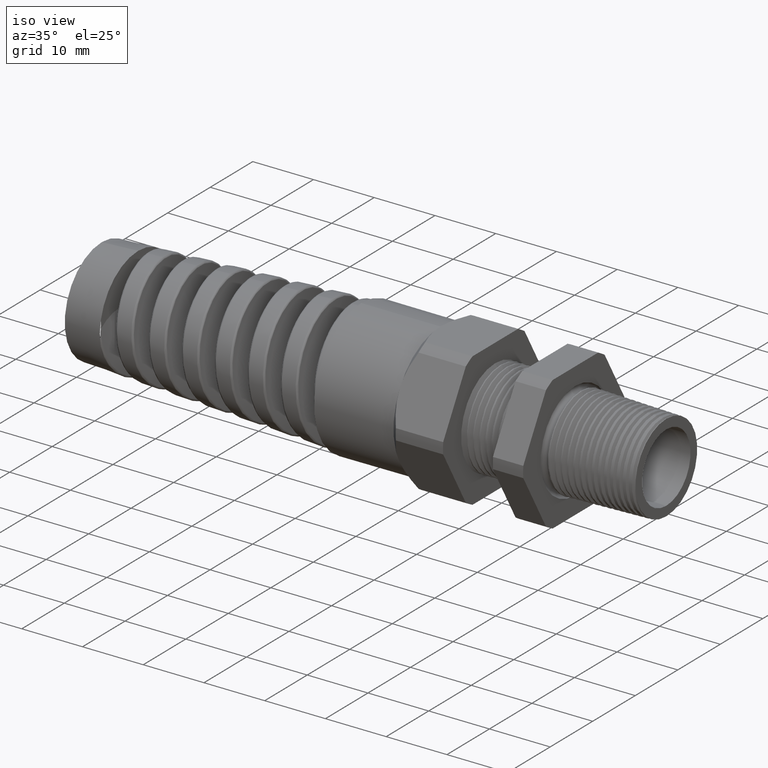
[diagram: clean part render]
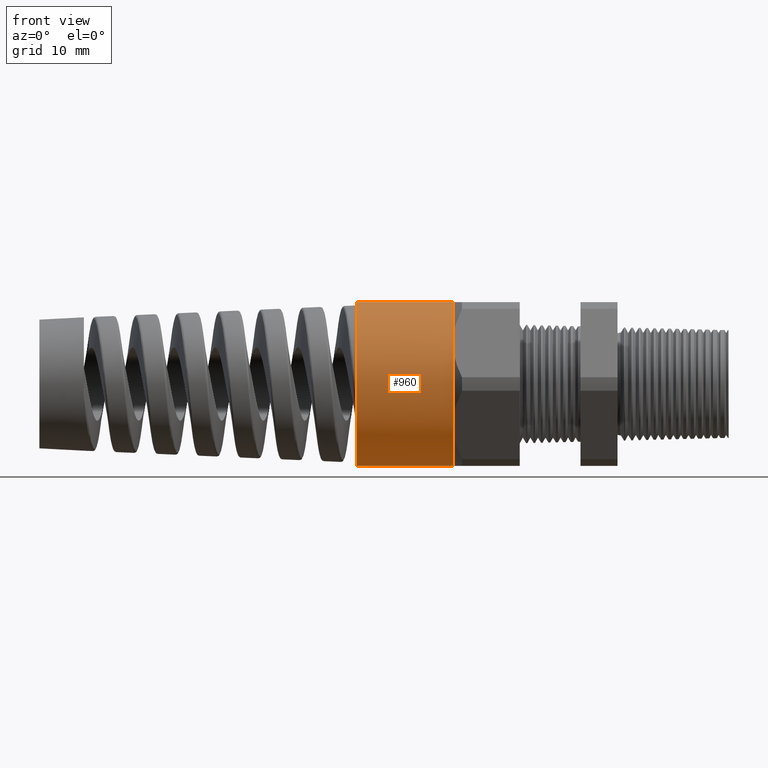
[diagram: tour spotlight — one face highlighted and labeled with its STEP entity id]
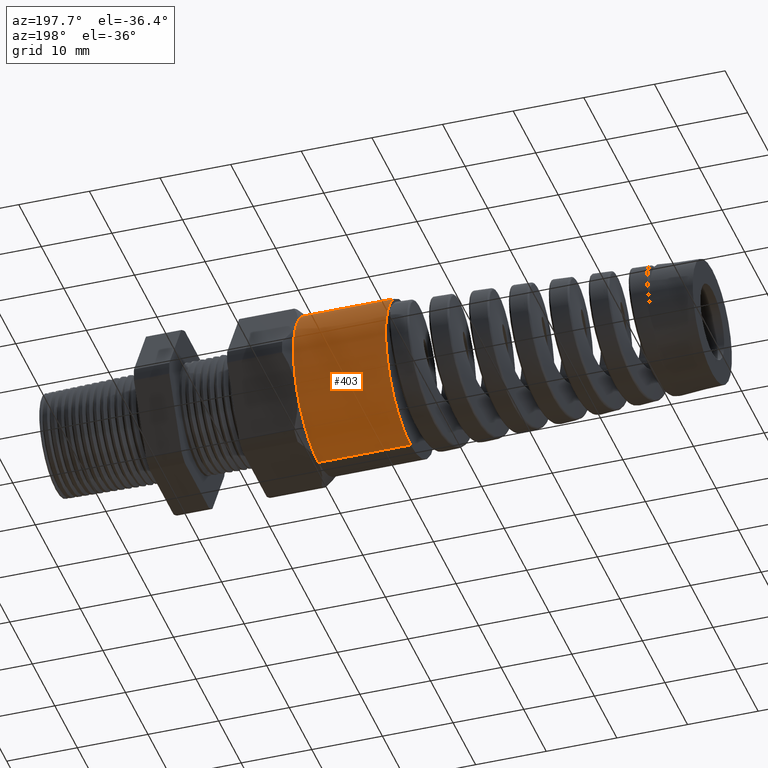
[diagram: tour spotlight — one face highlighted and labeled with its STEP entity id]
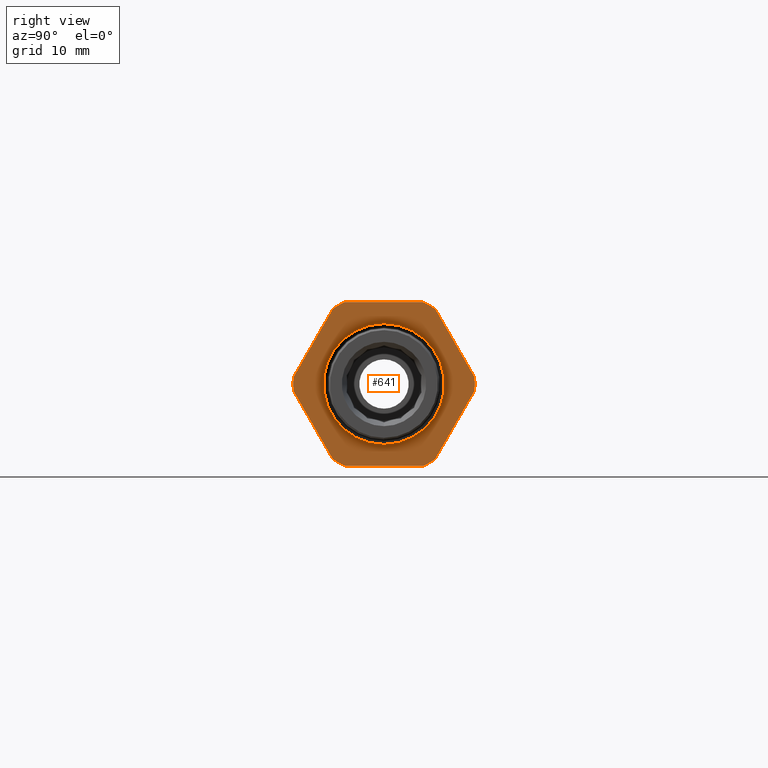
[diagram: tour spotlight — one face highlighted and labeled with its STEP entity id]
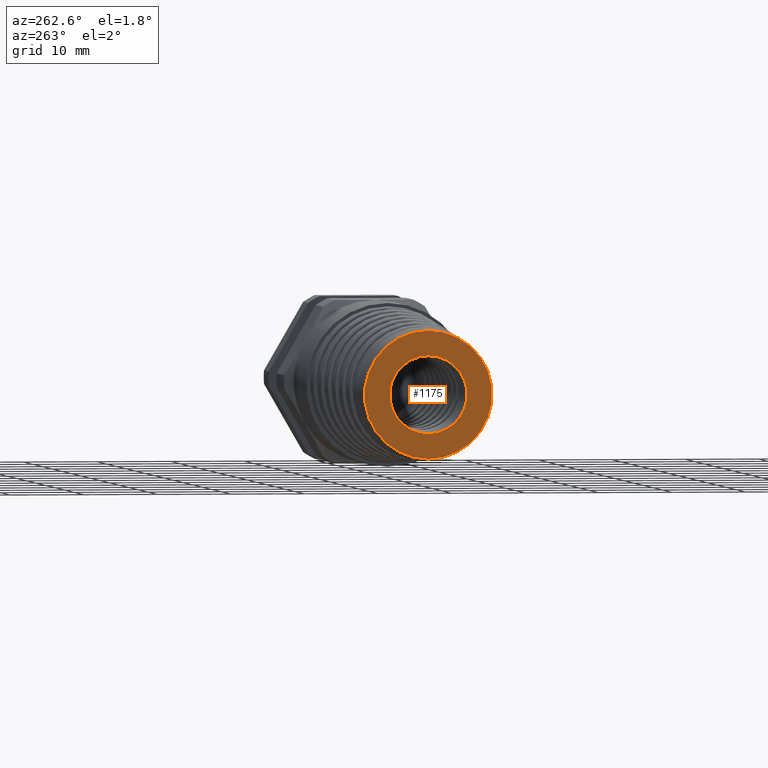
[diagram: tour spotlight — one face highlighted and labeled with its STEP entity id]
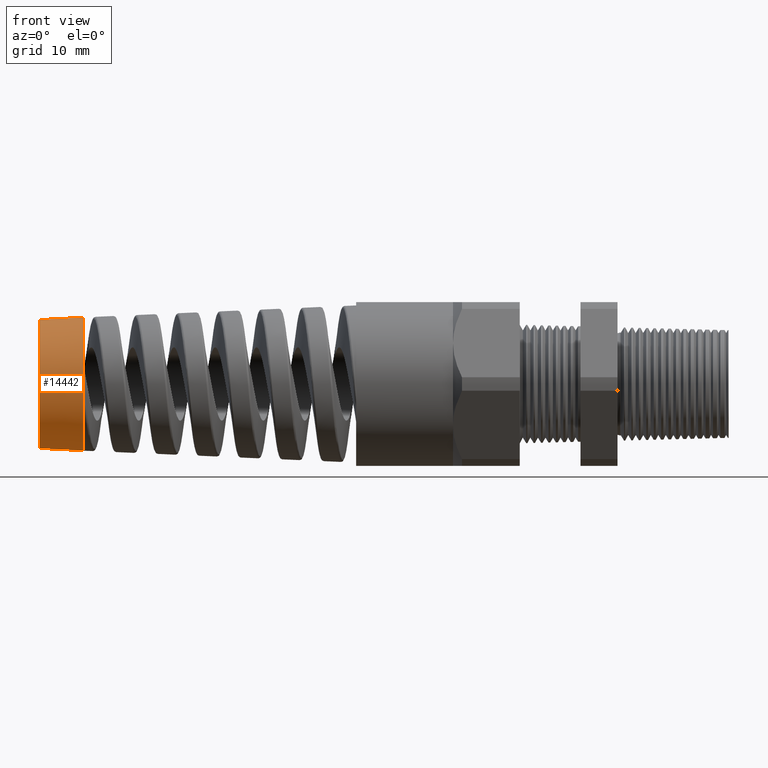
[diagram: tour spotlight — one face highlighted and labeled with its STEP entity id]
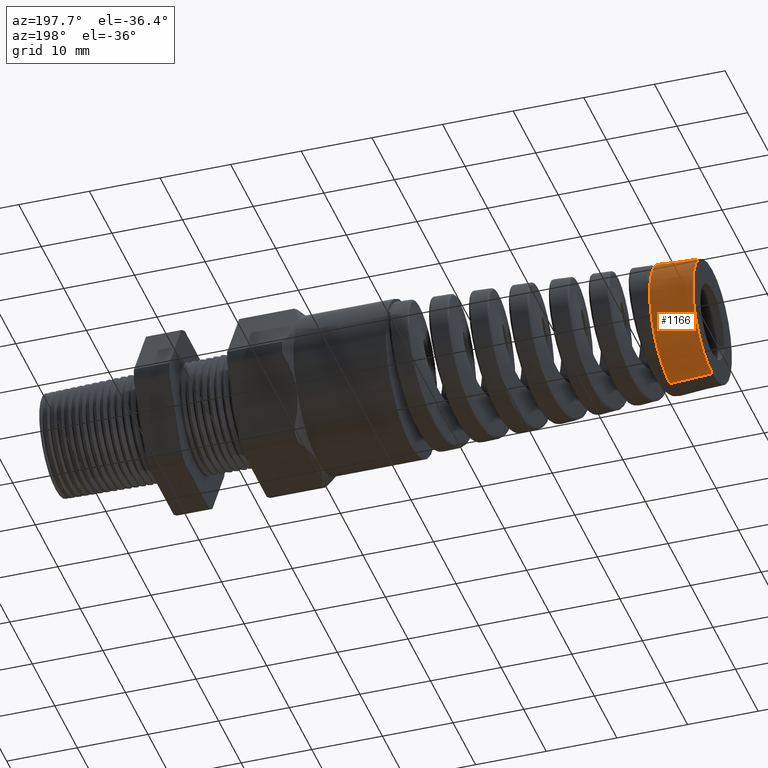
[diagram: tour spotlight — one face highlighted and labeled with its STEP entity id]
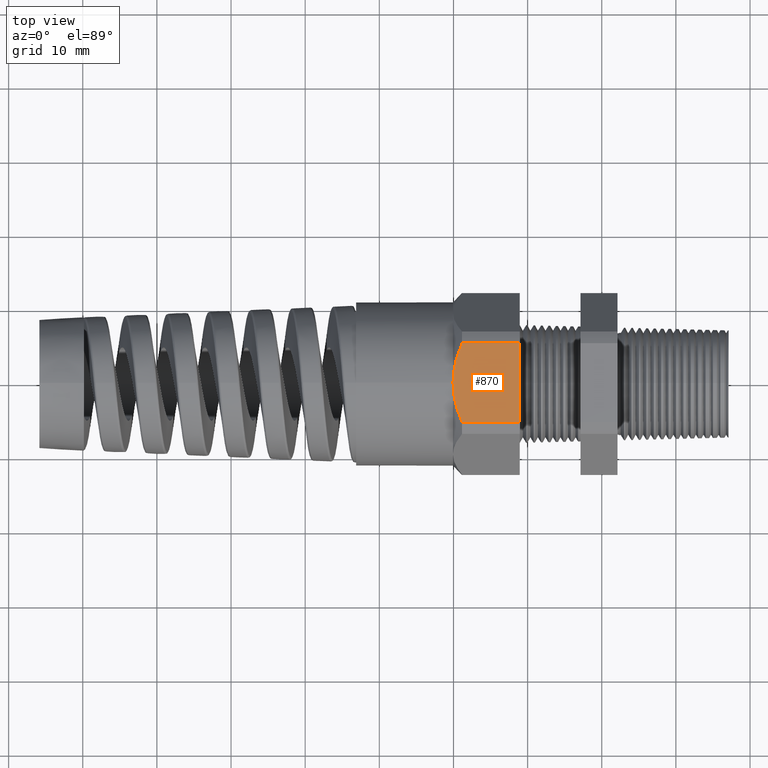
[diagram: tour spotlight — one face highlighted and labeled with its STEP entity id]
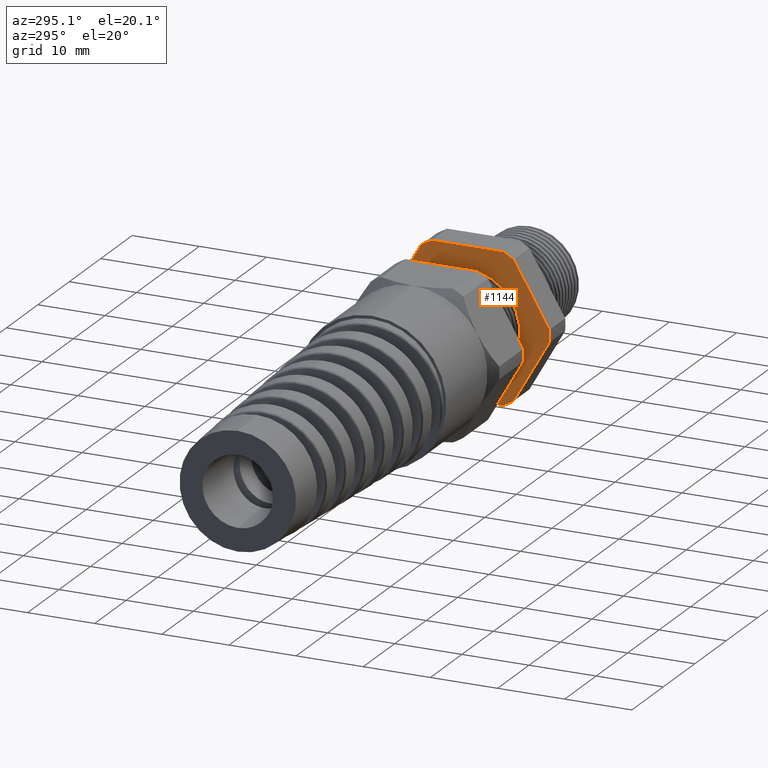
[diagram: tour spotlight — one face highlighted and labeled with its STEP entity id]
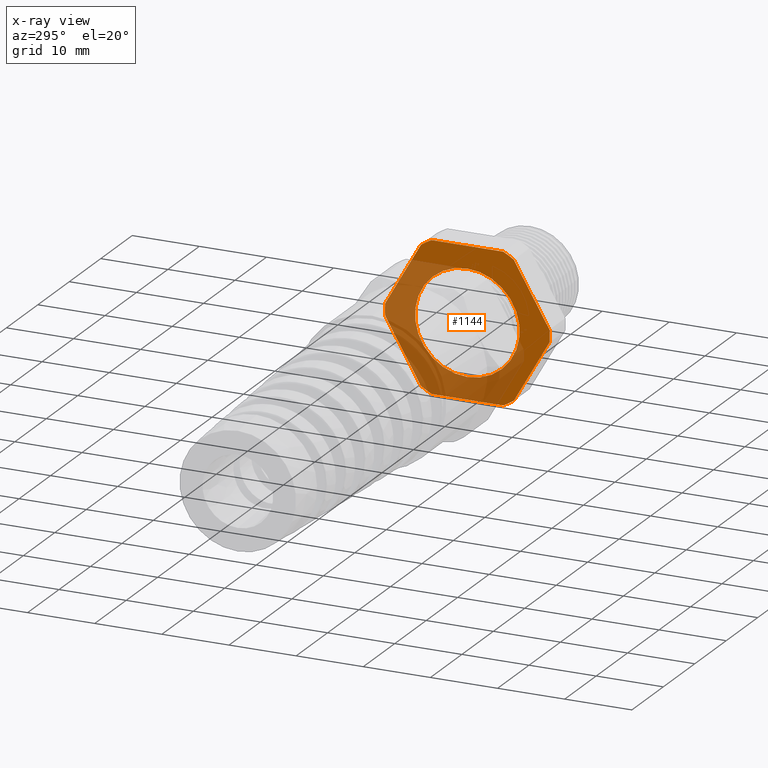
[diagram: x-ray of the same camera — body ghosted, this tour face saturated]
A machine part: a face-by-face anatomy tour. The part has 239 B-rep faces; the first image is the clean iso view, then the 8 largest visible faces are spotlighted one at a time (largest first), each with its STEP entity span.

Face 1 — front view, entity #960. In plain terms, the highlighted cylindrical surface (partial cylindrical patch) has radius 11.049 mm, axis along (1, -0, -0).
Definition (entity closure, byte-faithful):
#391 = VERTEX_POINT ( 'NONE', #3383 ) ;
#393 = EDGE_CURVE ( 'NONE', #9541, #391, #3382, .T. ) ;
#842 = VERTEX_POINT ( 'NONE', #4492 ) ;
#891 = VERTEX_POINT ( 'NONE', #4611 ) ;
#960 = ADVANCED_FACE ( 'NONE', ( #4759 ), #4758, .T. ) ;
#961 = EDGE_LOOP ( 'NONE', ( #962, #963, #965, #966, #1026, #1028 ) ) ;
#962 = ORIENTED_EDGE ( 'NONE', *, *, #9764, .F. ) ;
#963 = ORIENTED_EDGE ( 'NONE', *, *, #964, .F. ) ;
#964 = EDGE_CURVE ( 'NONE', #9541, #9543, #4753, .T. ) ;
#965 = ORIENTED_EDGE ( 'NONE', *, *, #393, .T. ) ;
#966 = ORIENTED_EDGE ( 'NONE', *, *, #967, .F. ) ;
#967 = EDGE_CURVE ( 'NONE', #891, #391, #4748, .T. ) ;
#1026 = ORIENTED_EDGE ( 'NONE', *, *, #1027, .F. ) ;
#1027 = EDGE_CURVE ( 'NONE', #842, #891, #4885, .T. ) ;
#1028 = ORIENTED_EDGE ( 'NONE', *, *, #1029, .F. ) ;
#1029 = EDGE_CURVE ( 'NONE', #9567, #842, #4881, .T. ) ;
#3379 = DIRECTION ( 'NONE',  ( 1.000000000000000000, -0.0000000000000000000, -0.0000000000000000000 ) ) ;
#3380 = VECTOR ( 'NONE', #3379, 39.37007874015748100 ) ;
#3381 = CARTESIAN_POINT ( 'NONE',  ( 1.326736918405036800, 0.0000000000000000000, -0.4350000000000000000 ) ) ;
#3382 = LINE ( 'NONE', #3381, #3380 ) ;
#3383 = CARTESIAN_POINT ( 'NONE',  ( -1.183700787401574600, 0.0000000000000000000, -0.4350000000000000500 ) ) ;
#4492 = CARTESIAN_POINT ( 'NONE',  ( -1.183700787401574600, -0.3767210506462307900, 0.2174999999999998900 ) ) ;
#4611 = CARTESIAN_POINT ( 'NONE',  ( -1.183700787401574600, -0.3767210506462308500, -0.2175000000000000000 ) ) ;
#4744 = DIRECTION ( 'NONE',  ( 0.0000000000000000000, 0.0000000000000000000, -1.000000000000000000 ) ) ;
#4745 = DIRECTION ( 'NONE',  ( 1.000000000000000000, -0.0000000000000000000, -0.0000000000000000000 ) ) ;
#4746 = CARTESIAN_POINT ( 'NONE',  ( -1.183700787401574600, 0.0000000000000000000, 0.0000000000000000000 ) ) ;
#4747 = AXIS2_PLACEMENT_3D ( 'NONE', #4746, #4745, #4744 ) ;
#4748 = CIRCLE ( 'NONE', #4747, 0.4350000000000000000 ) ;
#4749 = DIRECTION ( 'NONE',  ( 0.0000000000000000000, 0.0000000000000000000, 1.000000000000000000 ) ) ;
#4750 = DIRECTION ( 'NONE',  ( -1.000000000000000000, 0.0000000000000000000, 0.0000000000000000000 ) ) ;
#4751 = CARTESIAN_POINT ( 'NONE',  ( -1.697947509874504500, 0.0000000000000000000, 0.0000000000000000000 ) ) ;
#4752 = AXIS2_PLACEMENT_3D ( 'NONE', #4751, #4750, #4749 ) ;
#4753 = CIRCLE ( 'NONE', #4752, 0.4349999999999999400 ) ;
#4754 = DIRECTION ( 'NONE',  ( 0.0000000000000000000, 0.0000000000000000000, -1.000000000000000000 ) ) ;
#4755 = DIRECTION ( 'NONE',  ( 1.000000000000000000, -0.0000000000000000000, -0.0000000000000000000 ) ) ;
#4756 = CARTESIAN_POINT ( 'NONE',  ( 1.326736918405036800, 0.0000000000000000000, 0.0000000000000000000 ) ) ;
#4757 = AXIS2_PLACEMENT_3D ( 'NONE', #4756, #4755, #4754 ) ;
#4758 = CYLINDRICAL_SURFACE ( 'NONE', #4757, 0.4350000000000000000 ) ;
#4759 = FACE_OUTER_BOUND ( 'NONE', #961, .T. ) ;
#4877 = DIRECTION ( 'NONE',  ( 0.0000000000000000000, 0.0000000000000000000, -1.000000000000000000 ) ) ;
#4878 = DIRECTION ( 'NONE',  ( 1.000000000000000000, -0.0000000000000000000, -0.0000000000000000000 ) ) ;
#4879 = CARTESIAN_POINT ( 'NONE',  ( -1.183700787401574600, 0.0000000000000000000, 0.0000000000000000000 ) ) ;
#4880 = AXIS2_PLACEMENT_3D ( 'NONE', #4879, #4878, #4877 ) ;
#4881 = CIRCLE ( 'NONE', #4880, 0.4350000000000000000 ) ;
#4882 = DIRECTION ( 'NONE',  ( 0.0000000000000000000, 0.0000000000000000000, -1.000000000000000000 ) ) ;
#4883 = DIRECTION ( 'NONE',  ( 1.000000000000000000, -0.0000000000000000000, -0.0000000000000000000 ) ) ;
#4884 = AXIS2_PLACEMENT_3D ( 'NONE', #4889, #4883, #4882 ) ;
#4885 = CIRCLE ( 'NONE', #4884, 0.4350000000000000000 ) ;
#4889 = CARTESIAN_POINT ( 'NONE',  ( -1.183700787401574600, 0.0000000000000000000, 0.0000000000000000000 ) ) ;
#9218 = CARTESIAN_POINT ( 'NONE',  ( -1.697947509874504500, 5.327213576290985700E-017, 0.4349999999999999400 ) ) ;
#9219 = CARTESIAN_POINT ( 'NONE',  ( -1.697947509874504500, 0.0000000000000000000, -0.4349999999999999400 ) ) ;
#9252 = CARTESIAN_POINT ( 'NONE',  ( -1.183700787401574600, 0.0000000000000000000, 0.4349999999999998900 ) ) ;
#9404 = DIRECTION ( 'NONE',  ( 1.000000000000000000, -0.0000000000000000000, -0.0000000000000000000 ) ) ;
#9405 = VECTOR ( 'NONE', #9404, 39.37007874015748100 ) ;
#9406 = CARTESIAN_POINT ( 'NONE',  ( 1.326736918405036800, 5.327213576290986400E-017, 0.4350000000000000000 ) ) ;
#9407 = LINE ( 'NONE', #9406, #9405 ) ;
#9541 = VERTEX_POINT ( 'NONE', #9219 ) ;
#9543 = VERTEX_POINT ( 'NONE', #9218 ) ;
#9567 = VERTEX_POINT ( 'NONE', #9252 ) ;
#9764 = EDGE_CURVE ( 'NONE', #9543, #9567, #9407, .T. ) ;

Face 2 — auxiliary view, entity #403. In plain terms, the highlighted cylindrical surface (partial cylindrical patch) has radius 11.049 mm, axis along (1, -0, -0).
Definition (entity closure, byte-faithful):
#385 = EDGE_CURVE ( 'NONE', #9565, #9567, #3399, .T. ) ;
#386 = ORIENTED_EDGE ( 'NONE', *, *, #387, .F. ) ;
#387 = EDGE_CURVE ( 'NONE', #388, #9565, #3394, .T. ) ;
#388 = VERTEX_POINT ( 'NONE', #3389 ) ;
#389 = ORIENTED_EDGE ( 'NONE', *, *, #390, .F. ) ;
#390 = EDGE_CURVE ( 'NONE', #391, #388, #3388, .T. ) ;
#391 = VERTEX_POINT ( 'NONE', #3383 ) ;
#392 = ORIENTED_EDGE ( 'NONE', *, *, #393, .F. ) ;
#393 = EDGE_CURVE ( 'NONE', #9541, #391, #3382, .T. ) ;
#403 = ADVANCED_FACE ( 'NONE', ( #3423 ), #3422, .T. ) ;
#404 = EDGE_LOOP ( 'NONE', ( #405, #9542, #9566, #386, #389, #392 ) ) ;
#405 = ORIENTED_EDGE ( 'NONE', *, *, #406, .F. ) ;
#406 = EDGE_CURVE ( 'NONE', #9543, #9541, #3417, .T. ) ;
#3379 = DIRECTION ( 'NONE',  ( 1.000000000000000000, -0.0000000000000000000, -0.0000000000000000000 ) ) ;
#3380 = VECTOR ( 'NONE', #3379, 39.37007874015748100 ) ;
#3381 = CARTESIAN_POINT ( 'NONE',  ( 1.326736918405036800, 0.0000000000000000000, -0.4350000000000000000 ) ) ;
#3382 = LINE ( 'NONE', #3381, #3380 ) ;
#3383 = CARTESIAN_POINT ( 'NONE',  ( -1.183700787401574600, 0.0000000000000000000, -0.4350000000000000500 ) ) ;
#3384 = DIRECTION ( 'NONE',  ( 0.0000000000000000000, 0.0000000000000000000, -1.000000000000000000 ) ) ;
#3385 = DIRECTION ( 'NONE',  ( 1.000000000000000000, -0.0000000000000000000, -0.0000000000000000000 ) ) ;
#3386 = CARTESIAN_POINT ( 'NONE',  ( -1.183700787401574600, 0.0000000000000000000, 0.0000000000000000000 ) ) ;
#3387 = AXIS2_PLACEMENT_3D ( 'NONE', #3386, #3385, #3384 ) ;
#3388 = CIRCLE ( 'NONE', #3387, 0.4350000000000000000 ) ;
#3389 = CARTESIAN_POINT ( 'NONE',  ( -1.183700787401574600, 0.3767210506462309600, -0.2175000000000000300 ) ) ;
#3390 = DIRECTION ( 'NONE',  ( 0.0000000000000000000, 0.0000000000000000000, -1.000000000000000000 ) ) ;
#3391 = DIRECTION ( 'NONE',  ( 1.000000000000000000, -0.0000000000000000000, -0.0000000000000000000 ) ) ;
#3392 = CARTESIAN_POINT ( 'NONE',  ( -1.183700787401574600, 0.0000000000000000000, 0.0000000000000000000 ) ) ;
#3393 = AXIS2_PLACEMENT_3D ( 'NONE', #3392, #3391, #3390 ) ;
#3394 = CIRCLE ( 'NONE', #3393, 0.4350000000000000000 ) ;
#3395 = DIRECTION ( 'NONE',  ( 0.0000000000000000000, 0.0000000000000000000, -1.000000000000000000 ) ) ;
#3396 = DIRECTION ( 'NONE',  ( 1.000000000000000000, -0.0000000000000000000, -0.0000000000000000000 ) ) ;
#3397 = CARTESIAN_POINT ( 'NONE',  ( -1.183700787401574600, 0.0000000000000000000, 0.0000000000000000000 ) ) ;
#3398 = AXIS2_PLACEMENT_3D ( 'NONE', #3397, #3396, #3395 ) ;
#3399 = CIRCLE ( 'NONE', #3398, 0.4350000000000000000 ) ;
#3413 = DIRECTION ( 'NONE',  ( 0.0000000000000000000, 0.0000000000000000000, 1.000000000000000000 ) ) ;
#3414 = DIRECTION ( 'NONE',  ( -1.000000000000000000, 0.0000000000000000000, 0.0000000000000000000 ) ) ;
#3415 = CARTESIAN_POINT ( 'NONE',  ( -1.697947509874504500, 0.0000000000000000000, 0.0000000000000000000 ) ) ;
#3416 = AXIS2_PLACEMENT_3D ( 'NONE', #3415, #3414, #3413 ) ;
#3417 = CIRCLE ( 'NONE', #3416, 0.4349999999999999400 ) ;
#3418 = DIRECTION ( 'NONE',  ( 0.0000000000000000000, 0.0000000000000000000, -1.000000000000000000 ) ) ;
#3419 = DIRECTION ( 'NONE',  ( 1.000000000000000000, -0.0000000000000000000, -0.0000000000000000000 ) ) ;
#3420 = CARTESIAN_POINT ( 'NONE',  ( 1.326736918405036800, 0.0000000000000000000, 0.0000000000000000000 ) ) ;
#3421 = AXIS2_PLACEMENT_3D ( 'NONE', #3420, #3419, #3418 ) ;
#3422 = CYLINDRICAL_SURFACE ( 'NONE', #3421, 0.4350000000000000000 ) ;
#3423 = FACE_OUTER_BOUND ( 'NONE', #404, .T. ) ;
#9218 = CARTESIAN_POINT ( 'NONE',  ( -1.697947509874504500, 5.327213576290985700E-017, 0.4349999999999999400 ) ) ;
#9219 = CARTESIAN_POINT ( 'NONE',  ( -1.697947509874504500, 0.0000000000000000000, -0.4349999999999999400 ) ) ;
#9252 = CARTESIAN_POINT ( 'NONE',  ( -1.183700787401574600, 0.0000000000000000000, 0.4349999999999998900 ) ) ;
#9253 = CARTESIAN_POINT ( 'NONE',  ( -1.183700787401574600, 0.3767210506462309000, 0.2175000000000000000 ) ) ;
#9404 = DIRECTION ( 'NONE',  ( 1.000000000000000000, -0.0000000000000000000, -0.0000000000000000000 ) ) ;
#9405 = VECTOR ( 'NONE', #9404, 39.37007874015748100 ) ;
#9406 = CARTESIAN_POINT ( 'NONE',  ( 1.326736918405036800, 5.327213576290986400E-017, 0.4350000000000000000 ) ) ;
#9407 = LINE ( 'NONE', #9406, #9405 ) ;
#9541 = VERTEX_POINT ( 'NONE', #9219 ) ;
#9542 = ORIENTED_EDGE ( 'NONE', *, *, #9764, .T. ) ;
#9543 = VERTEX_POINT ( 'NONE', #9218 ) ;
#9565 = VERTEX_POINT ( 'NONE', #9253 ) ;
#9566 = ORIENTED_EDGE ( 'NONE', *, *, #385, .F. ) ;
#9567 = VERTEX_POINT ( 'NONE', #9252 ) ;
#9764 = EDGE_CURVE ( 'NONE', #9543, #9567, #9407, .T. ) ;

Face 3 — right view, entity #641. In plain terms, the highlighted planar face has unit normal (1, 0, -0).
Definition (entity closure, byte-faithful):
#559 = EDGE_CURVE ( 'NONE', #560, #561, #3690, .T. ) ;
#560 = VERTEX_POINT ( 'NONE', #3686 ) ;
#561 = VERTEX_POINT ( 'NONE', #3685 ) ;
#562 = ORIENTED_EDGE ( 'NONE', *, *, #563, .T. ) ;
#563 = EDGE_CURVE ( 'NONE', #561, #564, #3684, .T. ) ;
#564 = VERTEX_POINT ( 'NONE', #3679 ) ;
#565 = ORIENTED_EDGE ( 'NONE', *, *, #566, .T. ) ;
#566 = EDGE_CURVE ( 'NONE', #564, #567, #3739, .T. ) ;
#567 = VERTEX_POINT ( 'NONE', #3735 ) ;
#568 = ORIENTED_EDGE ( 'NONE', *, *, #624, .T. ) ;
#610 = EDGE_CURVE ( 'NONE', #637, #611, #3793, .T. ) ;
#611 = VERTEX_POINT ( 'NONE', #3789 ) ;
#612 = ORIENTED_EDGE ( 'NONE', *, *, #613, .T. ) ;
#613 = EDGE_CURVE ( 'NONE', #611, #614, #3788, .T. ) ;
#614 = VERTEX_POINT ( 'NONE', #3783 ) ;
#615 = ORIENTED_EDGE ( 'NONE', *, *, #616, .T. ) ;
#616 = EDGE_CURVE ( 'NONE', #614, #617, #3782, .T. ) ;
#617 = VERTEX_POINT ( 'NONE', #3778 ) ;
#618 = ORIENTED_EDGE ( 'NONE', *, *, #619, .T. ) ;
#619 = EDGE_CURVE ( 'NONE', #617, #560, #3777, .T. ) ;
#620 = EDGE_LOOP ( 'NONE', ( #621, #622 ) ) ;
#621 = ORIENTED_EDGE ( 'NONE', *, *, #1964, .T. ) ;
#622 = ORIENTED_EDGE ( 'NONE', *, *, #623, .T. ) ;
#623 = EDGE_CURVE ( 'NONE', #1879, #1915, #3835, .T. ) ;
#624 = EDGE_CURVE ( 'NONE', #567, #625, #3830, .T. ) ;
#625 = VERTEX_POINT ( 'NONE', #3825 ) ;
#626 = ORIENTED_EDGE ( 'NONE', *, *, #627, .T. ) ;
#627 = EDGE_CURVE ( 'NONE', #625, #628, #3824, .T. ) ;
#628 = VERTEX_POINT ( 'NONE', #3820 ) ;
#629 = ORIENTED_EDGE ( 'NONE', *, *, #630, .T. ) ;
#630 = EDGE_CURVE ( 'NONE', #628, #631, #3819, .T. ) ;
#631 = VERTEX_POINT ( 'NONE', #3814 ) ;
#632 = ORIENTED_EDGE ( 'NONE', *, *, #633, .T. ) ;
#633 = EDGE_CURVE ( 'NONE', #631, #634, #3813, .T. ) ;
#634 = VERTEX_POINT ( 'NONE', #3809 ) ;
#635 = ORIENTED_EDGE ( 'NONE', *, *, #636, .T. ) ;
#636 = EDGE_CURVE ( 'NONE', #634, #637, #3808, .T. ) ;
#637 = VERTEX_POINT ( 'NONE', #3802 ) ;
#638 = ORIENTED_EDGE ( 'NONE', *, *, #610, .T. ) ;
#641 = ADVANCED_FACE ( 'NONE', ( #3862, #3861 ), #3860, .T. ) ;
#642 = EDGE_LOOP ( 'NONE', ( #643, #562, #565, #568, #626, #629, #632, #635, #638, #612, #615, #618 ) ) ;
#643 = ORIENTED_EDGE ( 'NONE', *, *, #559, .T. ) ;
#1879 = VERTEX_POINT ( 'NONE', #12130 ) ;
#1915 = VERTEX_POINT ( 'NONE', #12245 ) ;
#1964 = EDGE_CURVE ( 'NONE', #1915, #1879, #12338, .T. ) ;
#3679 = CARTESIAN_POINT ( 'NONE',  ( -0.3100000000000000000, 0.4815054990391102200, 0.03600801154045397300 ) ) ;
#3680 = DIRECTION ( 'NONE',  ( 0.0000000000000000000, 0.0000000000000000000, -1.000000000000000000 ) ) ;
#3681 = DIRECTION ( 'NONE',  ( 1.000000000000000000, -0.0000000000000000000, -0.0000000000000000000 ) ) ;
#3682 = CARTESIAN_POINT ( 'NONE',  ( -0.3100000000000000000, 0.0000000000000000000, 0.0000000000000000000 ) ) ;
#3683 = AXIS2_PLACEMENT_3D ( 'NONE', #3682, #3681, #3680 ) ;
#3684 = CIRCLE ( 'NONE', #3683, 0.4828500000000001700 ) ;
#3685 = CARTESIAN_POINT ( 'NONE',  ( -0.3100000000000000000, 0.4815054990391102700, -0.03600801154045397300 ) ) ;
#3686 = CARTESIAN_POINT ( 'NONE',  ( -0.3100000000000000000, 0.2719366022533517000, -0.3989919884595459800 ) ) ;
#3687 = DIRECTION ( 'NONE',  ( 0.0000000000000000000, 0.4999999999999998300, 0.8660254037844386000 ) ) ;
#3688 = VECTOR ( 'NONE', #3687, 39.37007874015748900 ) ;
#3689 = CARTESIAN_POINT ( 'NONE',  ( -0.3100000000000000000, 0.5942210506462308800, 0.1592210506462307400 ) ) ;
#3690 = LINE ( 'NONE', #3689, #3688 ) ;
#3735 = CARTESIAN_POINT ( 'NONE',  ( -0.3100000000000000000, 0.2719366022533515900, 0.3989919884595459800 ) ) ;
#3736 = DIRECTION ( 'NONE',  ( 0.0000000000000000000, -0.4999999999999998300, 0.8660254037844386000 ) ) ;
#3737 = VECTOR ( 'NONE', #3736, 39.37007874015748900 ) ;
#3738 = CARTESIAN_POINT ( 'NONE',  ( -0.3100000000000000000, 0.5942210506462307600, -0.1592210506462307900 ) ) ;
#3739 = LINE ( 'NONE', #3738, #3737 ) ;
#3773 = DIRECTION ( 'NONE',  ( 0.0000000000000000000, 0.0000000000000000000, -1.000000000000000000 ) ) ;
#3774 = DIRECTION ( 'NONE',  ( 1.000000000000000000, -0.0000000000000000000, -0.0000000000000000000 ) ) ;
#3775 = CARTESIAN_POINT ( 'NONE',  ( -0.3100000000000000000, 0.0000000000000000000, 0.0000000000000000000 ) ) ;
#3776 = AXIS2_PLACEMENT_3D ( 'NONE', #3775, #3774, #3773 ) ;
#3777 = CIRCLE ( 'NONE', #3776, 0.4828500000000000600 ) ;
#3778 = CARTESIAN_POINT ( 'NONE',  ( -0.3100000000000000000, 0.2095688967857588500, -0.4350000000000000000 ) ) ;
#3779 = DIRECTION ( 'NONE',  ( 0.0000000000000000000, 1.000000000000000000, 0.0000000000000000000 ) ) ;
#3780 = VECTOR ( 'NONE', #3779, 39.37007874015748100 ) ;
#3781 = CARTESIAN_POINT ( 'NONE',  ( -0.3100000000000000000, 0.8700000000000000000, -0.4350000000000000500 ) ) ;
#3782 = LINE ( 'NONE', #3781, #3780 ) ;
#3783 = CARTESIAN_POINT ( 'NONE',  ( -0.3100000000000000000, -0.2095688967857587700, -0.4350000000000000500 ) ) ;
#3784 = DIRECTION ( 'NONE',  ( 0.0000000000000000000, 0.0000000000000000000, -1.000000000000000000 ) ) ;
#3785 = DIRECTION ( 'NONE',  ( 1.000000000000000000, -0.0000000000000000000, -0.0000000000000000000 ) ) ;
#3786 = CARTESIAN_POINT ( 'NONE',  ( -0.3100000000000000000, 0.0000000000000000000, 0.0000000000000000000 ) ) ;
#3787 = AXIS2_PLACEMENT_3D ( 'NONE', #3786, #3785, #3784 ) ;
#3788 = CIRCLE ( 'NONE', #3787, 0.4828500000000000600 ) ;
#3789 = CARTESIAN_POINT ( 'NONE',  ( -0.3100000000000000000, -0.2719366022533510900, -0.3989919884595464200 ) ) ;
#3790 = DIRECTION ( 'NONE',  ( 0.0000000000000000000, 0.5000000000000001100, -0.8660254037844386000 ) ) ;
#3791 = VECTOR ( 'NONE', #3790, 39.37007874015748100 ) ;
#3792 = CARTESIAN_POINT ( 'NONE',  ( -0.3100000000000000000, -0.1592210506462307100, -0.5942210506462308800 ) ) ;
#3793 = LINE ( 'NONE', #3792, #3791 ) ;
#3802 = CARTESIAN_POINT ( 'NONE',  ( -0.3100000000000000000, -0.4815054990391102700, -0.03600801154045379900 ) ) ;
#3803 = DIRECTION ( 'NONE',  ( 0.0000000000000000000, 0.0000000000000000000, -1.000000000000000000 ) ) ;
#3804 = DIRECTION ( 'NONE',  ( 1.000000000000000000, -0.0000000000000000000, -0.0000000000000000000 ) ) ;
#3805 = CARTESIAN_POINT ( 'NONE',  ( -0.3100000000000000000, 0.0000000000000000000, 0.0000000000000000000 ) ) ;
#3806 = AXIS2_PLACEMENT_3D ( 'NONE', #3805, #3804, #3803 ) ;
#3808 = CIRCLE ( 'NONE', #3806, 0.4828500000000000600 ) ;
#3809 = CARTESIAN_POINT ( 'NONE',  ( -0.3100000000000000000, -0.4815054990391102700, 0.03600801154045355600 ) ) ;
#3810 = DIRECTION ( 'NONE',  ( -0.0000000000000000000, -0.4999999999999998300, -0.8660254037844388200 ) ) ;
#3811 = VECTOR ( 'NONE', #3810, 39.37007874015748100 ) ;
#3812 = CARTESIAN_POINT ( 'NONE',  ( -0.3100000000000000000, -0.1592210506462307100, 0.5942210506462305400 ) ) ;
#3813 = LINE ( 'NONE', #3812, #3811 ) ;
#3814 = CARTESIAN_POINT ( 'NONE',  ( -0.3100000000000000000, -0.2719366022533513700, 0.3989919884595462500 ) ) ;
#3815 = DIRECTION ( 'NONE',  ( 0.0000000000000000000, 0.0000000000000000000, -1.000000000000000000 ) ) ;
#3816 = DIRECTION ( 'NONE',  ( 1.000000000000000000, -0.0000000000000000000, -0.0000000000000000000 ) ) ;
#3817 = CARTESIAN_POINT ( 'NONE',  ( -0.3100000000000000000, 0.0000000000000000000, 0.0000000000000000000 ) ) ;
#3818 = AXIS2_PLACEMENT_3D ( 'NONE', #3817, #3816, #3815 ) ;
#3819 = CIRCLE ( 'NONE', #3818, 0.4828500000000000600 ) ;
#3820 = CARTESIAN_POINT ( 'NONE',  ( -0.3100000000000000000, -0.2095688967857593000, 0.4349999999999997800 ) ) ;
#3821 = DIRECTION ( 'NONE',  ( 0.0000000000000000000, -1.000000000000000000, 0.0000000000000000000 ) ) ;
#3822 = VECTOR ( 'NONE', #3821, 39.37007874015748100 ) ;
#3823 = CARTESIAN_POINT ( 'NONE',  ( -0.3100000000000000000, 0.8700000000000000000, 0.4349999999999998900 ) ) ;
#3824 = LINE ( 'NONE', #3823, #3822 ) ;
#3825 = CARTESIAN_POINT ( 'NONE',  ( -0.3100000000000000000, 0.2095688967857591300, 0.4349999999999998900 ) ) ;
#3826 = DIRECTION ( 'NONE',  ( 0.0000000000000000000, 0.0000000000000000000, -1.000000000000000000 ) ) ;
#3827 = DIRECTION ( 'NONE',  ( 1.000000000000000000, -0.0000000000000000000, -0.0000000000000000000 ) ) ;
#3828 = CARTESIAN_POINT ( 'NONE',  ( -0.3100000000000000000, 0.0000000000000000000, 0.0000000000000000000 ) ) ;
#3829 = AXIS2_PLACEMENT_3D ( 'NONE', #3828, #3827, #3826 ) ;
#3830 = CIRCLE ( 'NONE', #3829, 0.4828500000000000000 ) ;
#3831 = DIRECTION ( 'NONE',  ( 0.0000000000000000000, 0.0000000000000000000, -1.000000000000000000 ) ) ;
#3832 = DIRECTION ( 'NONE',  ( -1.000000000000000000, 0.0000000000000000000, 0.0000000000000000000 ) ) ;
#3833 = CARTESIAN_POINT ( 'NONE',  ( -0.3100000000000000000, 0.0000000000000000000, 0.0000000000000000000 ) ) ;
#3834 = AXIS2_PLACEMENT_3D ( 'NONE', #3833, #3832, #3831 ) ;
#3835 = CIRCLE ( 'NONE', #3834, 0.3203798078463252500 ) ;
#3855 = DIRECTION ( 'NONE',  ( -0.0000000000000000000, 0.0000000000000000000, -1.000000000000000000 ) ) ;
#3856 = DIRECTION ( 'NONE',  ( 1.000000000000000000, 0.0000000000000000000, -0.0000000000000000000 ) ) ;
#3857 = AXIS2_PLACEMENT_3D ( 'NONE', #3859, #3856, #3855 ) ;
#3859 = CARTESIAN_POINT ( 'NONE',  ( -0.3100000000000000000, 0.8700000000000000000, 0.0000000000000000000 ) ) ;
#3860 = PLANE ( 'NONE',  #3857 ) ;
#3861 = FACE_BOUND ( 'NONE', #620, .T. ) ;
#3862 = FACE_OUTER_BOUND ( 'NONE', #642, .T. ) ;
#12130 = CARTESIAN_POINT ( 'NONE',  ( -0.3100000000000000000, 3.923521061904462700E-017, 0.3203798078463252500 ) ) ;
#12245 = CARTESIAN_POINT ( 'NONE',  ( -0.3100000000000000000, 0.0000000000000000000, -0.3203798078463252500 ) ) ;
#12334 = DIRECTION ( 'NONE',  ( 0.0000000000000000000, 0.0000000000000000000, -1.000000000000000000 ) ) ;
#12335 = DIRECTION ( 'NONE',  ( -1.000000000000000000, 0.0000000000000000000, 0.0000000000000000000 ) ) ;
#12336 = CARTESIAN_POINT ( 'NONE',  ( -0.3100000000000000000, 0.0000000000000000000, 0.0000000000000000000 ) ) ;
#12337 = AXIS2_PLACEMENT_3D ( 'NONE', #12336, #12335, #12334 ) ;
#12338 = CIRCLE ( 'NONE', #12337, 0.3203798078463252500 ) ;

Face 4 — auxiliary view, entity #1175. In plain terms, the highlighted planar face has unit normal (-1, 0, 0).
Definition (entity closure, byte-faithful):
#1175 = ADVANCED_FACE ( 'NONE', ( #5101, #5100 ), #5098, .T. ) ;
#1176 = EDGE_LOOP ( 'NONE', ( #1177, #1179 ) ) ;
#1177 = ORIENTED_EDGE ( 'NONE', *, *, #1178, .T. ) ;
#1178 = EDGE_CURVE ( 'NONE', #14407, #14408, #5141, .T. ) ;
#1179 = ORIENTED_EDGE ( 'NONE', *, *, #14438, .T. ) ;
#1180 = EDGE_LOOP ( 'NONE', ( #1181, #1238 ) ) ;
#1181 = ORIENTED_EDGE ( 'NONE', *, *, #1182, .F. ) ;
#1182 = EDGE_CURVE ( 'NONE', #9766, #9558, #5136, .T. ) ;
#1238 = ORIENTED_EDGE ( 'NONE', *, *, #9584, .F. ) ;
#5086 = DIRECTION ( 'NONE',  ( 0.0000000000000000000, 0.0000000000000000000, 1.000000000000000000 ) ) ;
#5087 = DIRECTION ( 'NONE',  ( -1.000000000000000000, 0.0000000000000000000, 0.0000000000000000000 ) ) ;
#5088 = CARTESIAN_POINT ( 'NONE',  ( -3.380000472440945400, 0.0000000000000000000, 0.0000000000000000000 ) ) ;
#5097 = AXIS2_PLACEMENT_3D ( 'NONE', #5088, #5087, #5086 ) ;
#5098 = PLANE ( 'NONE',  #5097 ) ;
#5100 = FACE_BOUND ( 'NONE', #1180, .T. ) ;
#5101 = FACE_OUTER_BOUND ( 'NONE', #1176, .T. ) ;
#5132 = DIRECTION ( 'NONE',  ( 0.0000000000000000000, 0.0000000000000000000, 1.000000000000000000 ) ) ;
#5133 = DIRECTION ( 'NONE',  ( -1.000000000000000000, 0.0000000000000000000, 0.0000000000000000000 ) ) ;
#5134 = CARTESIAN_POINT ( 'NONE',  ( -3.380000472440945400, 0.0000000000000000000, 0.0000000000000000000 ) ) ;
#5135 = AXIS2_PLACEMENT_3D ( 'NONE', #5134, #5133, #5132 ) ;
#5136 = CIRCLE ( 'NONE', #5135, 0.2073797903814007000 ) ;
#5137 = DIRECTION ( 'NONE',  ( 0.0000000000000000000, 0.0000000000000000000, 1.000000000000000000 ) ) ;
#5138 = DIRECTION ( 'NONE',  ( -1.000000000000000000, 0.0000000000000000000, 0.0000000000000000000 ) ) ;
#5139 = CARTESIAN_POINT ( 'NONE',  ( -3.380000472440945400, 0.0000000000000000000, 0.0000000000000000000 ) ) ;
#5140 = AXIS2_PLACEMENT_3D ( 'NONE', #5139, #5138, #5137 ) ;
#5141 = CIRCLE ( 'NONE', #5140, 0.3416824268732350200 ) ;
#9246 = DIRECTION ( 'NONE',  ( 0.0000000000000000000, 0.0000000000000000000, 1.000000000000000000 ) ) ;
#9247 = DIRECTION ( 'NONE',  ( -1.000000000000000000, 0.0000000000000000000, 0.0000000000000000000 ) ) ;
#9248 = CARTESIAN_POINT ( 'NONE',  ( -3.380000472440945400, 0.0000000000000000000, 0.0000000000000000000 ) ) ;
#9249 = AXIS2_PLACEMENT_3D ( 'NONE', #9248, #9247, #9246 ) ;
#9250 = CIRCLE ( 'NONE', #9249, 0.2073797903814007000 ) ;
#9257 = CARTESIAN_POINT ( 'NONE',  ( -3.380000472440945400, 2.539669964984313900E-017, -0.2073797903814007000 ) ) ;
#9403 = CARTESIAN_POINT ( 'NONE',  ( -3.380000472440945400, 0.0000000000000000000, 0.2073797903814007000 ) ) ;
#9558 = VERTEX_POINT ( 'NONE', #9257 ) ;
#9584 = EDGE_CURVE ( 'NONE', #9558, #9766, #9250, .T. ) ;
#9766 = VERTEX_POINT ( 'NONE', #9403 ) ;
#13590 = CARTESIAN_POINT ( 'NONE',  ( -3.380000472440945400, -4.260207257278128200E-017, -0.3416824268732350200 ) ) ;
#13591 = CARTESIAN_POINT ( 'NONE',  ( -3.380000472440945400, 0.0000000000000000000, 0.3416824268732350200 ) ) ;
#13718 = DIRECTION ( 'NONE',  ( 0.0000000000000000000, 0.0000000000000000000, 1.000000000000000000 ) ) ;
#13719 = DIRECTION ( 'NONE',  ( -1.000000000000000000, 0.0000000000000000000, 0.0000000000000000000 ) ) ;
#13720 = CARTESIAN_POINT ( 'NONE',  ( -3.380000472440945400, 0.0000000000000000000, 0.0000000000000000000 ) ) ;
#13721 = AXIS2_PLACEMENT_3D ( 'NONE', #13720, #13719, #13718 ) ;
#13722 = CIRCLE ( 'NONE', #13721, 0.3416824268732350200 ) ;
#14407 = VERTEX_POINT ( 'NONE', #13591 ) ;
#14408 = VERTEX_POINT ( 'NONE', #13590 ) ;
#14438 = EDGE_CURVE ( 'NONE', #14408, #14407, #13722, .T. ) ;

Face 5 — front view, entity #14442. In plain terms, the highlighted conical surface has half-angle 3 deg.
Definition (entity closure, byte-faithful):
#19 = VERTEX_POINT ( 'NONE', #2316 ) ;
#88 = VERTEX_POINT ( 'NONE', #2568 ) ;
#92 = EDGE_CURVE ( 'NONE', #88, #19, #2607, .T. ) ;
#2316 = CARTESIAN_POINT ( 'NONE',  ( -3.143780000000000000, -4.336011610604188400E-017, -0.3540622172550558200 ) ) ;
#2568 = CARTESIAN_POINT ( 'NONE',  ( -3.143780000000000000, -0.3460956572399269100, -0.07468500336231730100 ) ) ;
#2603 = DIRECTION ( 'NONE',  ( 0.0000000000000000000, 0.0000000000000000000, -1.000000000000000000 ) ) ;
#2604 = DIRECTION ( 'NONE',  ( 1.000000000000000000, -0.0000000000000000000, -0.0000000000000000000 ) ) ;
#2605 = CARTESIAN_POINT ( 'NONE',  ( -3.143780000000000000, 0.0000000000000000000, 0.0000000000000000000 ) ) ;
#2606 = AXIS2_PLACEMENT_3D ( 'NONE', #2605, #2604, #2603 ) ;
#2607 = CIRCLE ( 'NONE', #2606, 0.3540622172550578200 ) ;
#9288 = DIRECTION ( 'NONE',  ( 0.0000000000000000000, 0.0000000000000000000, 1.000000000000000000 ) ) ;
#9289 = DIRECTION ( 'NONE',  ( -1.000000000000000000, 0.0000000000000000000, 0.0000000000000000000 ) ) ;
#9290 = CARTESIAN_POINT ( 'NONE',  ( -3.143780000000000000, 0.0000000000000000000, 0.0000000000000000000 ) ) ;
#9291 = AXIS2_PLACEMENT_3D ( 'NONE', #9290, #9289, #9288 ) ;
#9292 = CIRCLE ( 'NONE', #9291, 0.3540622172550558200 ) ;
#9300 = DIRECTION ( 'NONE',  ( 0.9986295347545738300, 0.0000000000000000000, 0.05233595624294395300 ) ) ;
#9301 = VECTOR ( 'NONE', #9300, 39.37007874015748900 ) ;
#9302 = CARTESIAN_POINT ( 'NONE',  ( -3.143780000000000000, 0.0000000000000000000, 0.3540622172550558200 ) ) ;
#9303 = LINE ( 'NONE', #9302, #9301 ) ;
#9310 = CARTESIAN_POINT ( 'NONE',  ( -3.143780000000000000, 0.0000000000000000000, 0.3540622172550558200 ) ) ;
#9617 = ORIENTED_EDGE ( 'NONE', *, *, #9620, .F. ) ;
#9618 = VERTEX_POINT ( 'NONE', #9310 ) ;
#9620 = EDGE_CURVE ( 'NONE', #14407, #9618, #9303, .T. ) ;
#9625 = EDGE_CURVE ( 'NONE', #88, #9618, #9292, .T. ) ;
#9628 = ORIENTED_EDGE ( 'NONE', *, *, #9625, .T. ) ;
#13590 = CARTESIAN_POINT ( 'NONE',  ( -3.380000472440945400, -4.260207257278128200E-017, -0.3416824268732350200 ) ) ;
#13591 = CARTESIAN_POINT ( 'NONE',  ( -3.380000472440945400, 0.0000000000000000000, 0.3416824268732350200 ) ) ;
#13712 = DIRECTION ( 'NONE',  ( 0.0000000000000000000, 0.0000000000000000000, 1.000000000000000000 ) ) ;
#13713 = DIRECTION ( 'NONE',  ( 1.000000000000000000, -0.0000000000000000000, -0.0000000000000000000 ) ) ;
#13714 = AXIS2_PLACEMENT_3D ( 'NONE', #13717, #13713, #13712 ) ;
#13715 = CONICAL_SURFACE ( 'NONE', #13714, 0.3540622172550558200, 0.05235987755983000100 ) ;
#13717 = CARTESIAN_POINT ( 'NONE',  ( -3.143780000000000000, 0.0000000000000000000, 0.0000000000000000000 ) ) ;
#13718 = DIRECTION ( 'NONE',  ( 0.0000000000000000000, 0.0000000000000000000, 1.000000000000000000 ) ) ;
#13719 = DIRECTION ( 'NONE',  ( -1.000000000000000000, 0.0000000000000000000, 0.0000000000000000000 ) ) ;
#13720 = CARTESIAN_POINT ( 'NONE',  ( -3.380000472440945400, 0.0000000000000000000, 0.0000000000000000000 ) ) ;
#13721 = AXIS2_PLACEMENT_3D ( 'NONE', #13720, #13719, #13718 ) ;
#13722 = CIRCLE ( 'NONE', #13721, 0.3416824268732350200 ) ;
#13723 = FACE_OUTER_BOUND ( 'NONE', #14440, .T. ) ;
#13726 = DIRECTION ( 'NONE',  ( 0.9986295347545738300, -6.409306129323724800E-018, -0.05233595624294395300 ) ) ;
#13727 = VECTOR ( 'NONE', #13726, 39.37007874015748900 ) ;
#13728 = CARTESIAN_POINT ( 'NONE',  ( -3.143780000000000000, -4.336011610604188400E-017, -0.3540622172550558200 ) ) ;
#13729 = LINE ( 'NONE', #13728, #13727 ) ;
#14406 = ORIENTED_EDGE ( 'NONE', *, *, #92, .F. ) ;
#14407 = VERTEX_POINT ( 'NONE', #13591 ) ;
#14408 = VERTEX_POINT ( 'NONE', #13590 ) ;
#14430 = EDGE_CURVE ( 'NONE', #14408, #19, #13729, .T. ) ;
#14431 = ORIENTED_EDGE ( 'NONE', *, *, #14430, .T. ) ;
#14438 = EDGE_CURVE ( 'NONE', #14408, #14407, #13722, .T. ) ;
#14439 = ORIENTED_EDGE ( 'NONE', *, *, #14438, .F. ) ;
#14440 = EDGE_LOOP ( 'NONE', ( #14439, #14431, #14406, #9628, #9617 ) ) ;
#14442 = ADVANCED_FACE ( 'NONE', ( #13723 ), #13715, .T. ) ;

Face 6 — auxiliary view, entity #1166. In plain terms, the highlighted conical surface has half-angle 3 deg.
Definition (entity closure, byte-faithful):
#19 = VERTEX_POINT ( 'NONE', #2316 ) ;
#103 = VERTEX_POINT ( 'NONE', #2653 ) ;
#1166 = ADVANCED_FACE ( 'NONE', ( #5113 ), #5112, .T. ) ;
#1167 = EDGE_LOOP ( 'NONE', ( #1168, #1226, #1227, #1228, #1230 ) ) ;
#1168 = ORIENTED_EDGE ( 'NONE', *, *, #14430, .F. ) ;
#1178 = EDGE_CURVE ( 'NONE', #14407, #14408, #5141, .T. ) ;
#1226 = ORIENTED_EDGE ( 'NONE', *, *, #1178, .F. ) ;
#1227 = ORIENTED_EDGE ( 'NONE', *, *, #9620, .T. ) ;
#1228 = ORIENTED_EDGE ( 'NONE', *, *, #1229, .T. ) ;
#1229 = EDGE_CURVE ( 'NONE', #9618, #103, #5183, .T. ) ;
#1230 = ORIENTED_EDGE ( 'NONE', *, *, #14516, .F. ) ;
#2316 = CARTESIAN_POINT ( 'NONE',  ( -3.143780000000000000, -4.336011610604188400E-017, -0.3540622172550558200 ) ) ;
#2653 = CARTESIAN_POINT ( 'NONE',  ( -3.143780000000000000, 0.3473251167516775400, -0.06874094093770707900 ) ) ;
#5107 = DIRECTION ( 'NONE',  ( 0.0000000000000000000, 0.0000000000000000000, 1.000000000000000000 ) ) ;
#5108 = DIRECTION ( 'NONE',  ( 1.000000000000000000, -0.0000000000000000000, -0.0000000000000000000 ) ) ;
#5109 = CARTESIAN_POINT ( 'NONE',  ( -3.143780000000000000, 0.0000000000000000000, 0.0000000000000000000 ) ) ;
#5110 = AXIS2_PLACEMENT_3D ( 'NONE', #5109, #5108, #5107 ) ;
#5112 = CONICAL_SURFACE ( 'NONE', #5110, 0.3540622172550558200, 0.05235987755983000100 ) ;
#5113 = FACE_OUTER_BOUND ( 'NONE', #1167, .T. ) ;
#5137 = DIRECTION ( 'NONE',  ( 0.0000000000000000000, 0.0000000000000000000, 1.000000000000000000 ) ) ;
#5138 = DIRECTION ( 'NONE',  ( -1.000000000000000000, 0.0000000000000000000, 0.0000000000000000000 ) ) ;
#5139 = CARTESIAN_POINT ( 'NONE',  ( -3.380000472440945400, 0.0000000000000000000, 0.0000000000000000000 ) ) ;
#5140 = AXIS2_PLACEMENT_3D ( 'NONE', #5139, #5138, #5137 ) ;
#5141 = CIRCLE ( 'NONE', #5140, 0.3416824268732350200 ) ;
#5180 = DIRECTION ( 'NONE',  ( -1.000000000000000000, 0.0000000000000000000, 0.0000000000000000000 ) ) ;
#5181 = CARTESIAN_POINT ( 'NONE',  ( -3.143780000000000000, 0.0000000000000000000, 0.0000000000000000000 ) ) ;
#5182 = AXIS2_PLACEMENT_3D ( 'NONE', #5181, #5180, #5208 ) ;
#5183 = CIRCLE ( 'NONE', #5182, 0.3540622172550558200 ) ;
#5208 = DIRECTION ( 'NONE',  ( 0.0000000000000000000, 0.0000000000000000000, 1.000000000000000000 ) ) ;
#9300 = DIRECTION ( 'NONE',  ( 0.9986295347545738300, 0.0000000000000000000, 0.05233595624294395300 ) ) ;
#9301 = VECTOR ( 'NONE', #9300, 39.37007874015748900 ) ;
#9302 = CARTESIAN_POINT ( 'NONE',  ( -3.143780000000000000, 0.0000000000000000000, 0.3540622172550558200 ) ) ;
#9303 = LINE ( 'NONE', #9302, #9301 ) ;
#9310 = CARTESIAN_POINT ( 'NONE',  ( -3.143780000000000000, 0.0000000000000000000, 0.3540622172550558200 ) ) ;
#9618 = VERTEX_POINT ( 'NONE', #9310 ) ;
#9620 = EDGE_CURVE ( 'NONE', #14407, #9618, #9303, .T. ) ;
#13590 = CARTESIAN_POINT ( 'NONE',  ( -3.380000472440945400, -4.260207257278128200E-017, -0.3416824268732350200 ) ) ;
#13591 = CARTESIAN_POINT ( 'NONE',  ( -3.380000472440945400, 0.0000000000000000000, 0.3416824268732350200 ) ) ;
#13726 = DIRECTION ( 'NONE',  ( 0.9986295347545738300, -6.409306129323724800E-018, -0.05233595624294395300 ) ) ;
#13727 = VECTOR ( 'NONE', #13726, 39.37007874015748900 ) ;
#13728 = CARTESIAN_POINT ( 'NONE',  ( -3.143780000000000000, -4.336011610604188400E-017, -0.3540622172550558200 ) ) ;
#13729 = LINE ( 'NONE', #13728, #13727 ) ;
#14363 = DIRECTION ( 'NONE',  ( 0.0000000000000000000, 0.0000000000000000000, -1.000000000000000000 ) ) ;
#14364 = DIRECTION ( 'NONE',  ( 1.000000000000000000, -0.0000000000000000000, -0.0000000000000000000 ) ) ;
#14365 = CARTESIAN_POINT ( 'NONE',  ( -3.143780000000000000, 0.0000000000000000000, 0.0000000000000000000 ) ) ;
#14366 = AXIS2_PLACEMENT_3D ( 'NONE', #14365, #14364, #14363 ) ;
#14367 = CIRCLE ( 'NONE', #14366, 0.3540622172550578200 ) ;
#14407 = VERTEX_POINT ( 'NONE', #13591 ) ;
#14408 = VERTEX_POINT ( 'NONE', #13590 ) ;
#14430 = EDGE_CURVE ( 'NONE', #14408, #19, #13729, .T. ) ;
#14516 = EDGE_CURVE ( 'NONE', #19, #103, #14367, .T. ) ;

Face 7 — top view, entity #870. In plain terms, the highlighted planar face has unit normal (0, 0, 1).
Definition (entity closure, byte-faithful):
#848 = ORIENTED_EDGE ( 'NONE', *, *, #849, .T. ) ;
#849 = EDGE_CURVE ( 'NONE', #9567, #850, #4526, .T. ) ;
#850 = VERTEX_POINT ( 'NONE', #4525 ) ;
#851 = ORIENTED_EDGE ( 'NONE', *, *, #852, .F. ) ;
#852 = EDGE_CURVE ( 'NONE', #853, #850, #4518, .T. ) ;
#853 = VERTEX_POINT ( 'NONE', #4514 ) ;
#854 = ORIENTED_EDGE ( 'NONE', *, *, #855, .F. ) ;
#855 = EDGE_CURVE ( 'NONE', #867, #853, #4513, .T. ) ;
#864 = VERTEX_POINT ( 'NONE', #4549 ) ;
#866 = EDGE_CURVE ( 'NONE', #867, #864, #4548, .T. ) ;
#867 = VERTEX_POINT ( 'NONE', #4544 ) ;
#870 = ADVANCED_FACE ( 'NONE', ( #4543 ), #4537, .T. ) ;
#871 = EDGE_LOOP ( 'NONE', ( #872, #873, #848, #851, #854 ) ) ;
#872 = ORIENTED_EDGE ( 'NONE', *, *, #866, .T. ) ;
#873 = ORIENTED_EDGE ( 'NONE', *, *, #874, .T. ) ;
#874 = EDGE_CURVE ( 'NONE', #864, #9567, #4532, .T. ) ;
#4510 = DIRECTION ( 'NONE',  ( 0.0000000000000000000, -1.000000000000000000, 0.0000000000000000000 ) ) ;
#4511 = VECTOR ( 'NONE', #4510, 39.37007874015748100 ) ;
#4512 = CARTESIAN_POINT ( 'NONE',  ( -0.8293700787401573300, 0.3150000000000000000, 0.4349999999999998900 ) ) ;
#4513 = LINE ( 'NONE', #4512, #4511 ) ;
#4514 = CARTESIAN_POINT ( 'NONE',  ( -0.8293700787401573300, -0.2095688967857593000, 0.4349999999999997800 ) ) ;
#4515 = DIRECTION ( 'NONE',  ( -1.000000000000000000, -0.0000000000000000000, -0.0000000000000000000 ) ) ;
#4516 = VECTOR ( 'NONE', #4515, 39.37007874015748100 ) ;
#4517 = CARTESIAN_POINT ( 'NONE',  ( 0.2800000000000000300, -0.2095688967857593000, 0.4349999999999997800 ) ) ;
#4518 = LINE ( 'NONE', #4517, #4516 ) ;
#4519 = CARTESIAN_POINT ( 'NONE',  ( -1.135850787401574600, -0.2095688967857593000, 0.4349999999999997800 ) ) ;
#4520 = CARTESIAN_POINT ( 'NONE',  ( -1.150173967798506600, -0.1765680662201018200, 0.4349999999999998900 ) ) ;
#4521 = CARTESIAN_POINT ( 'NONE',  ( -1.162369287724099200, -0.1420117476062552900, 0.4349999999999997800 ) ) ;
#4522 = CARTESIAN_POINT ( 'NONE',  ( -1.179085132698686600, -0.07204736442187349700, 0.4349999999999998900 ) ) ;
#4523 = CARTESIAN_POINT ( 'NONE',  ( -1.183700787401574600, -0.03642096200278203300, 0.4349999999999999400 ) ) ;
#4524 = CARTESIAN_POINT ( 'NONE',  ( -1.183700787401574600, 0.0000000000000000000, 0.4349999999999998900 ) ) ;
#4525 = CARTESIAN_POINT ( 'NONE',  ( -1.135850787401574600, -0.2095688967857593000, 0.4349999999999997800 ) ) ;
#4526 = B_SPLINE_CURVE_WITH_KNOTS ( 'NONE', 3,
 ( #4524, #4523, #4522, #4521, #4520, #4519 ),
 .UNSPECIFIED., .F., .F.,
 ( 4, 2, 4 ),
 ( 0.01387641045209833000, 0.01660081637957174600, 0.01932522230704516700 ),
 .UNSPECIFIED. ) ;
#4527 = CARTESIAN_POINT ( 'NONE',  ( -1.143011411991466300, 0.1930707062801151100, 0.4349999999999998900 ) ) ;
#4528 = CARTESIAN_POINT ( 'NONE',  ( -1.135850787401574900, 0.2095688967857590700, 0.4349999999999998900 ) ) ;
#4532 = B_SPLINE_CURVE_WITH_KNOTS ( 'NONE', 3,
 ( #4528, #4527, #4588, #4587, #4586, #4585, #4584, #4583, #4582, #4581 ),
 .UNSPECIFIED., .F., .F.,
 ( 4, 2, 2, 2, 4 ),
 ( 0.008435252053080157300, 0.009795541652834700900, 0.01115583125258924400, 0.01251612085234378800, 0.01387641045209833000 ),
 .UNSPECIFIED. ) ;
#4533 = DIRECTION ( 'NONE',  ( 1.000000000000000000, 0.0000000000000000000, -0.0000000000000000000 ) ) ;
#4534 = DIRECTION ( 'NONE',  ( 0.0000000000000000000, 0.0000000000000000000, 1.000000000000000000 ) ) ;
#4535 = CARTESIAN_POINT ( 'NONE',  ( 0.2800000000000000300, -0.2095688967857591300, 0.4349999999999998900 ) ) ;
#4536 = AXIS2_PLACEMENT_3D ( 'NONE', #4535, #4534, #4533 ) ;
#4537 = PLANE ( 'NONE',  #4536 ) ;
#4543 = FACE_OUTER_BOUND ( 'NONE', #871, .T. ) ;
#4544 = CARTESIAN_POINT ( 'NONE',  ( -0.8293700787401573300, 0.2095688967857591300, 0.4349999999999998900 ) ) ;
#4545 = DIRECTION ( 'NONE',  ( -1.000000000000000000, -0.0000000000000000000, -0.0000000000000000000 ) ) ;
#4546 = VECTOR ( 'NONE', #4545, 39.37007874015748100 ) ;
#4547 = CARTESIAN_POINT ( 'NONE',  ( 0.2800000000000000300, 0.2095688967857591300, 0.4349999999999998900 ) ) ;
#4548 = LINE ( 'NONE', #4547, #4546 ) ;
#4549 = CARTESIAN_POINT ( 'NONE',  ( -1.135850787401574900, 0.2095688967857590700, 0.4349999999999998900 ) ) ;
#4581 = CARTESIAN_POINT ( 'NONE',  ( -1.183700787401574600, 0.0000000000000000000, 0.4349999999999998900 ) ) ;
#4582 = CARTESIAN_POINT ( 'NONE',  ( -1.183700787401574800, 0.01818490237663867800, 0.4349999999999997800 ) ) ;
#4583 = CARTESIAN_POINT ( 'NONE',  ( -1.182547022257489400, 0.03631701440643154300, 0.4349999999999998900 ) ) ;
#4584 = CARTESIAN_POINT ( 'NONE',  ( -1.178135087639042000, 0.07202051439197798600, 0.4349999999999997800 ) ) ;
#4585 = CARTESIAN_POINT ( 'NONE',  ( -1.174878923509562500, 0.08966953692545999400, 0.4349999999999997800 ) ) ;
#4586 = CARTESIAN_POINT ( 'NONE',  ( -1.166522427718574400, 0.1246115883433622900, 0.4349999999999998900 ) ) ;
#4587 = CARTESIAN_POINT ( 'NONE',  ( -1.161423188923762300, 0.1419048281921317400, 0.4349999999999999400 ) ) ;
#4588 = CARTESIAN_POINT ( 'NONE',  ( -1.149650839172687600, 0.1761874914065259800, 0.4349999999999998900 ) ) ;
#9252 = CARTESIAN_POINT ( 'NONE',  ( -1.183700787401574600, 0.0000000000000000000, 0.4349999999999998900 ) ) ;
#9567 = VERTEX_POINT ( 'NONE', #9252 ) ;

Face 8 — auxiliary view, entity #1144. An x-ray twin of the same camera follows (body ghosted, this face saturated) — the face is partly hidden behind the body. In plain terms, the highlighted planar face has unit normal (-1, 0, 0).
Definition (entity closure, byte-faithful):
#126 = VERTEX_POINT ( 'NONE', #2717 ) ;
#1003 = VERTEX_POINT ( 'NONE', #4807 ) ;
#1005 = EDGE_CURVE ( 'NONE', #1020, #1003, #4806, .T. ) ;
#1012 = VERTEX_POINT ( 'NONE', #4852 ) ;
#1013 = EDGE_CURVE ( 'NONE', #1034, #126, #4851, .T. ) ;
#1020 = VERTEX_POINT ( 'NONE', #4837 ) ;
#1022 = EDGE_CURVE ( 'NONE', #126, #1020, #4836, .T. ) ;
#1034 = VERTEX_POINT ( 'NONE', #4866 ) ;
#1039 = EDGE_CURVE ( 'NONE', #1054, #1063, #4923, .T. ) ;
#1046 = VERTEX_POINT ( 'NONE', #4909 ) ;
#1048 = EDGE_CURVE ( 'NONE', #1063, #1046, #4908, .T. ) ;
#1054 = VERTEX_POINT ( 'NONE', #4893 ) ;
#1056 = EDGE_CURVE ( 'NONE', #1072, #1054, #4954, .T. ) ;
#1063 = VERTEX_POINT ( 'NONE', #4940 ) ;
#1065 = EDGE_CURVE ( 'NONE', #1003, #1012, #4939, .T. ) ;
#1072 = VERTEX_POINT ( 'NONE', #4924 ) ;
#1074 = EDGE_CURVE ( 'NONE', #1012, #1072, #4987, .T. ) ;
#1080 = EDGE_CURVE ( 'NONE', #1097, #1034, #4981, .T. ) ;
#1088 = VERTEX_POINT ( 'NONE', #4960 ) ;
#1090 = EDGE_CURVE ( 'NONE', #1107, #1088, #4958, .T. ) ;
#1097 = VERTEX_POINT ( 'NONE', #5009 ) ;
#1099 = EDGE_CURVE ( 'NONE', #1088, #1097, #5008, .T. ) ;
#1107 = VERTEX_POINT ( 'NONE', #4994 ) ;
#1109 = EDGE_CURVE ( 'NONE', #1046, #1107, #4993, .T. ) ;
#1116 = ORIENTED_EDGE ( 'NONE', *, *, #1090, .T. ) ;
#1127 = ORIENTED_EDGE ( 'NONE', *, *, #1099, .T. ) ;
#1128 = ORIENTED_EDGE ( 'NONE', *, *, #1080, .T. ) ;
#1129 = ORIENTED_EDGE ( 'NONE', *, *, #1013, .T. ) ;
#1130 = ORIENTED_EDGE ( 'NONE', *, *, #1022, .T. ) ;
#1131 = ORIENTED_EDGE ( 'NONE', *, *, #1005, .T. ) ;
#1132 = ORIENTED_EDGE ( 'NONE', *, *, #1065, .T. ) ;
#1133 = ORIENTED_EDGE ( 'NONE', *, *, #1074, .T. ) ;
#1134 = ORIENTED_EDGE ( 'NONE', *, *, #1056, .T. ) ;
#1135 = ORIENTED_EDGE ( 'NONE', *, *, #1039, .T. ) ;
#1140 = EDGE_CURVE ( 'NONE', #9751, #9563, #5071, .T. ) ;
#1144 = ADVANCED_FACE ( 'NONE', ( #5061, #5060 ), #5059, .T. ) ;
#1145 = EDGE_LOOP ( 'NONE', ( #1146, #1147 ) ) ;
#1146 = ORIENTED_EDGE ( 'NONE', *, *, #1140, .T. ) ;
#1147 = ORIENTED_EDGE ( 'NONE', *, *, #9753, .T. ) ;
#1148 = EDGE_LOOP ( 'NONE', ( #1127, #1128, #1129, #1130, #1131, #1132, #1133, #1134, #1135, #1196, #1197, #1116 ) ) ;
#1196 = ORIENTED_EDGE ( 'NONE', *, *, #1048, .T. ) ;
#1197 = ORIENTED_EDGE ( 'NONE', *, *, #1109, .T. ) ;
#2717 = CARTESIAN_POINT ( 'NONE',  ( -0.5068503937007874400, 0.2719366022533516400, -0.3989919884595459800 ) ) ;
#4803 = DIRECTION ( 'NONE',  ( 0.0000000000000000000, -1.000000000000000000, 0.0000000000000000000 ) ) ;
#4804 = VECTOR ( 'NONE', #4803, 39.37007874015748100 ) ;
#4805 = CARTESIAN_POINT ( 'NONE',  ( -0.5068503937007874400, 0.8700000000000000000, -0.4350000000000000500 ) ) ;
#4806 = LINE ( 'NONE', #4805, #4804 ) ;
#4807 = CARTESIAN_POINT ( 'NONE',  ( -0.5068503937007874400, -0.2095688967857587700, -0.4350000000000000500 ) ) ;
#4832 = DIRECTION ( 'NONE',  ( 0.0000000000000000000, 0.0000000000000000000, 1.000000000000000000 ) ) ;
#4833 = DIRECTION ( 'NONE',  ( -1.000000000000000000, 0.0000000000000000000, 0.0000000000000000000 ) ) ;
#4834 = CARTESIAN_POINT ( 'NONE',  ( -0.5068503937007874400, 0.0000000000000000000, 0.0000000000000000000 ) ) ;
#4835 = AXIS2_PLACEMENT_3D ( 'NONE', #4834, #4833, #4832 ) ;
#4836 = CIRCLE ( 'NONE', #4835, 0.4828500000000000600 ) ;
#4837 = CARTESIAN_POINT ( 'NONE',  ( -0.5068503937007874400, 0.2095688967857588500, -0.4350000000000000000 ) ) ;
#4848 = DIRECTION ( 'NONE',  ( 0.0000000000000000000, -0.4999999999999998300, -0.8660254037844386000 ) ) ;
#4849 = VECTOR ( 'NONE', #4848, 39.37007874015748900 ) ;
#4850 = CARTESIAN_POINT ( 'NONE',  ( -0.5068503937007874400, 0.5942210506462308800, 0.1592210506462307400 ) ) ;
#4851 = LINE ( 'NONE', #4850, #4849 ) ;
#4852 = CARTESIAN_POINT ( 'NONE',  ( -0.5068503937007874400, -0.2719366022533510900, -0.3989919884595464200 ) ) ;
#4866 = CARTESIAN_POINT ( 'NONE',  ( -0.5068503937007874400, 0.4815054990391102700, -0.03600801154045400000 ) ) ;
#4893 = CARTESIAN_POINT ( 'NONE',  ( -0.5068503937007874400, -0.4815054990391102700, 0.03600801154045355600 ) ) ;
#4904 = DIRECTION ( 'NONE',  ( 0.0000000000000000000, 0.0000000000000000000, 1.000000000000000000 ) ) ;
#4905 = DIRECTION ( 'NONE',  ( -1.000000000000000000, 0.0000000000000000000, 0.0000000000000000000 ) ) ;
#4906 = CARTESIAN_POINT ( 'NONE',  ( -0.5068503937007874400, 0.0000000000000000000, 0.0000000000000000000 ) ) ;
#4907 = AXIS2_PLACEMENT_3D ( 'NONE', #4906, #4905, #4904 ) ;
#4908 = CIRCLE ( 'NONE', #4907, 0.4828500000000000600 ) ;
#4909 = CARTESIAN_POINT ( 'NONE',  ( -0.5068503937007874400, -0.2095688967857593000, 0.4349999999999997800 ) ) ;
#4920 = DIRECTION ( 'NONE',  ( 0.0000000000000000000, 0.4999999999999998300, 0.8660254037844388200 ) ) ;
#4921 = VECTOR ( 'NONE', #4920, 39.37007874015748100 ) ;
#4922 = CARTESIAN_POINT ( 'NONE',  ( -0.5068503937007874400, -0.1592210506462307100, 0.5942210506462305400 ) ) ;
#4923 = LINE ( 'NONE', #4922, #4921 ) ;
#4924 = CARTESIAN_POINT ( 'NONE',  ( -0.5068503937007874400, -0.4815054990391102700, -0.03600801154045379900 ) ) ;
#4935 = DIRECTION ( 'NONE',  ( 0.0000000000000000000, 0.0000000000000000000, 1.000000000000000000 ) ) ;
#4936 = DIRECTION ( 'NONE',  ( -1.000000000000000000, 0.0000000000000000000, 0.0000000000000000000 ) ) ;
#4937 = CARTESIAN_POINT ( 'NONE',  ( -0.5068503937007874400, 0.0000000000000000000, 0.0000000000000000000 ) ) ;
#4938 = AXIS2_PLACEMENT_3D ( 'NONE', #4937, #4936, #4935 ) ;
#4939 = CIRCLE ( 'NONE', #4938, 0.4828500000000000600 ) ;
#4940 = CARTESIAN_POINT ( 'NONE',  ( -0.5068503937007874400, -0.2719366022533513700, 0.3989919884595462500 ) ) ;
#4950 = DIRECTION ( 'NONE',  ( 0.0000000000000000000, 0.0000000000000000000, 1.000000000000000000 ) ) ;
#4951 = DIRECTION ( 'NONE',  ( -1.000000000000000000, 0.0000000000000000000, 0.0000000000000000000 ) ) ;
#4952 = CARTESIAN_POINT ( 'NONE',  ( -0.5068503937007874400, 0.0000000000000000000, 0.0000000000000000000 ) ) ;
#4953 = AXIS2_PLACEMENT_3D ( 'NONE', #4952, #4951, #4950 ) ;
#4954 = CIRCLE ( 'NONE', #4953, 0.4828500000000000600 ) ;
#4956 = CARTESIAN_POINT ( 'NONE',  ( -0.5068503937007874400, 0.0000000000000000000, 0.0000000000000000000 ) ) ;
#4957 = AXIS2_PLACEMENT_3D ( 'NONE', #4956, #5020, #5019 ) ;
#4958 = CIRCLE ( 'NONE', #4957, 0.4828500000000000000 ) ;
#4960 = CARTESIAN_POINT ( 'NONE',  ( -0.5068503937007874400, 0.2719366022533515900, 0.3989919884595459800 ) ) ;
#4973 = DIRECTION ( 'NONE',  ( 0.0000000000000000000, 0.0000000000000000000, 1.000000000000000000 ) ) ;
#4974 = DIRECTION ( 'NONE',  ( -1.000000000000000000, 0.0000000000000000000, 0.0000000000000000000 ) ) ;
#4975 = CARTESIAN_POINT ( 'NONE',  ( -0.5068503937007874400, 0.0000000000000000000, 0.0000000000000000000 ) ) ;
#4976 = AXIS2_PLACEMENT_3D ( 'NONE', #4975, #4974, #4973 ) ;
#4981 = CIRCLE ( 'NONE', #4976, 0.4828500000000001700 ) ;
#4984 = DIRECTION ( 'NONE',  ( 0.0000000000000000000, -0.5000000000000001100, 0.8660254037844386000 ) ) ;
#4985 = VECTOR ( 'NONE', #4984, 39.37007874015748100 ) ;
#4986 = CARTESIAN_POINT ( 'NONE',  ( -0.5068503937007874400, -0.1592210506462307100, -0.5942210506462308800 ) ) ;
#4987 = LINE ( 'NONE', #4986, #4985 ) ;
#4990 = DIRECTION ( 'NONE',  ( 0.0000000000000000000, 1.000000000000000000, -0.0000000000000000000 ) ) ;
#4991 = VECTOR ( 'NONE', #4990, 39.37007874015748100 ) ;
#4992 = CARTESIAN_POINT ( 'NONE',  ( -0.5068503937007874400, 0.8700000000000000000, 0.4349999999999998900 ) ) ;
#4993 = LINE ( 'NONE', #4992, #4991 ) ;
#4994 = CARTESIAN_POINT ( 'NONE',  ( -0.5068503937007874400, 0.2095688967857591300, 0.4349999999999998900 ) ) ;
#5005 = DIRECTION ( 'NONE',  ( 0.0000000000000000000, 0.4999999999999998300, -0.8660254037844386000 ) ) ;
#5006 = VECTOR ( 'NONE', #5005, 39.37007874015748900 ) ;
#5007 = CARTESIAN_POINT ( 'NONE',  ( -0.5068503937007874400, 0.5942210506462307600, -0.1592210506462307900 ) ) ;
#5008 = LINE ( 'NONE', #5007, #5006 ) ;
#5009 = CARTESIAN_POINT ( 'NONE',  ( -0.5068503937007874400, 0.4815054990391102200, 0.03600801154045397300 ) ) ;
#5019 = DIRECTION ( 'NONE',  ( 0.0000000000000000000, 0.0000000000000000000, 1.000000000000000000 ) ) ;
#5020 = DIRECTION ( 'NONE',  ( -1.000000000000000000, 0.0000000000000000000, 0.0000000000000000000 ) ) ;
#5054 = DIRECTION ( 'NONE',  ( 0.0000000000000000000, 0.0000000000000000000, 1.000000000000000000 ) ) ;
#5055 = DIRECTION ( 'NONE',  ( -1.000000000000000000, 0.0000000000000000000, 0.0000000000000000000 ) ) ;
#5056 = AXIS2_PLACEMENT_3D ( 'NONE', #5058, #5055, #5054 ) ;
#5058 = CARTESIAN_POINT ( 'NONE',  ( -0.5068503937007874400, 0.8700000000000000000, 0.0000000000000000000 ) ) ;
#5059 = PLANE ( 'NONE',  #5056 ) ;
#5060 = FACE_OUTER_BOUND ( 'NONE', #1148, .T. ) ;
#5061 = FACE_BOUND ( 'NONE', #1145, .T. ) ;
#5067 = DIRECTION ( 'NONE',  ( 0.0000000000000000000, 0.0000000000000000000, -1.000000000000000000 ) ) ;
#5068 = DIRECTION ( 'NONE',  ( 1.000000000000000000, -0.0000000000000000000, -0.0000000000000000000 ) ) ;
#5069 = CARTESIAN_POINT ( 'NONE',  ( -0.5068503937007873300, 0.0000000000000000000, 0.0000000000000000000 ) ) ;
#5070 = AXIS2_PLACEMENT_3D ( 'NONE', #5069, #5068, #5067 ) ;
#5071 = CIRCLE ( 'NONE', #5070, 0.3065545248230426300 ) ;
#9255 = CARTESIAN_POINT ( 'NONE',  ( -0.5068503937007873300, 3.756184420423992800E-017, -0.3065545248230426300 ) ) ;
#9321 = DIRECTION ( 'NONE',  ( 0.0000000000000000000, 0.0000000000000000000, -1.000000000000000000 ) ) ;
#9322 = DIRECTION ( 'NONE',  ( 1.000000000000000000, -0.0000000000000000000, -0.0000000000000000000 ) ) ;
#9323 = CARTESIAN_POINT ( 'NONE',  ( -0.5068503937007873300, 0.0000000000000000000, 0.0000000000000000000 ) ) ;
#9324 = AXIS2_PLACEMENT_3D ( 'NONE', #9323, #9322, #9321 ) ;
#9325 = CIRCLE ( 'NONE', #9324, 0.3065545248230426300 ) ;
#9327 = CARTESIAN_POINT ( 'NONE',  ( -0.5068503937007873300, 0.0000000000000000000, 0.3065545248230426300 ) ) ;
#9563 = VERTEX_POINT ( 'NONE', #9255 ) ;
#9751 = VERTEX_POINT ( 'NONE', #9327 ) ;
#9753 = EDGE_CURVE ( 'NONE', #9563, #9751, #9325, .T. ) ;